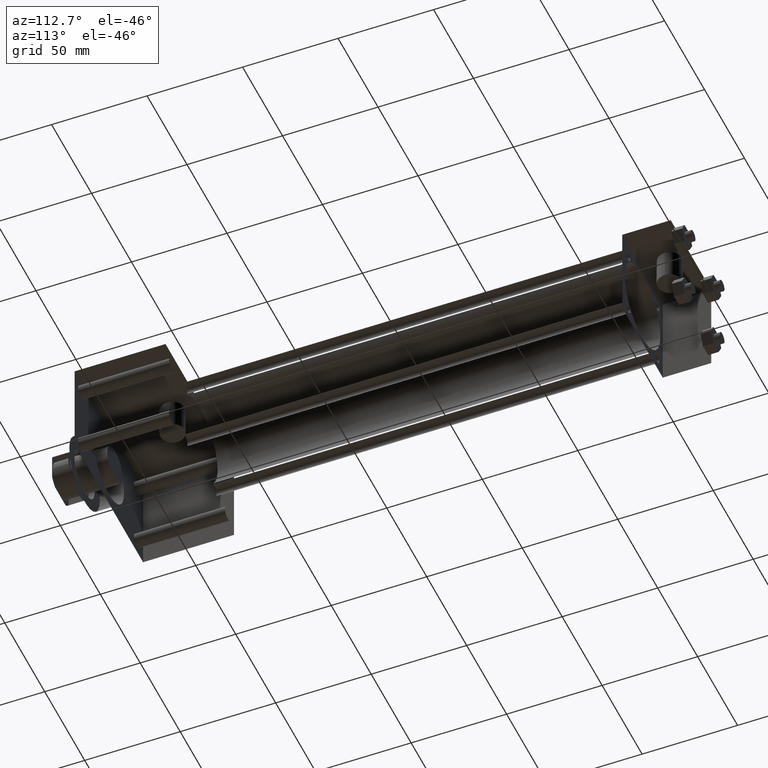
[diagram: clean part render]
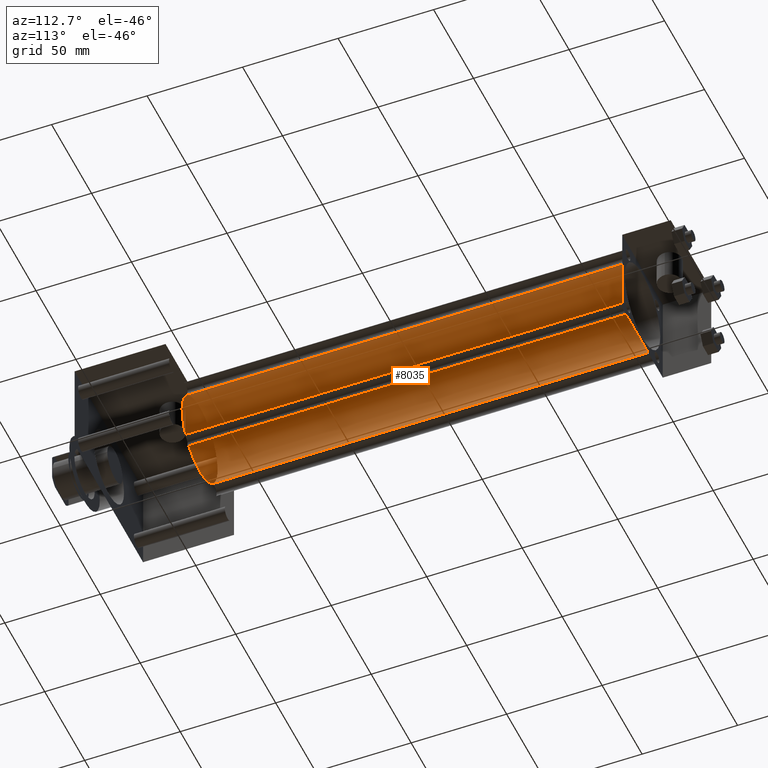
[diagram: same view with one face highlighted and labeled with its STEP entity id]
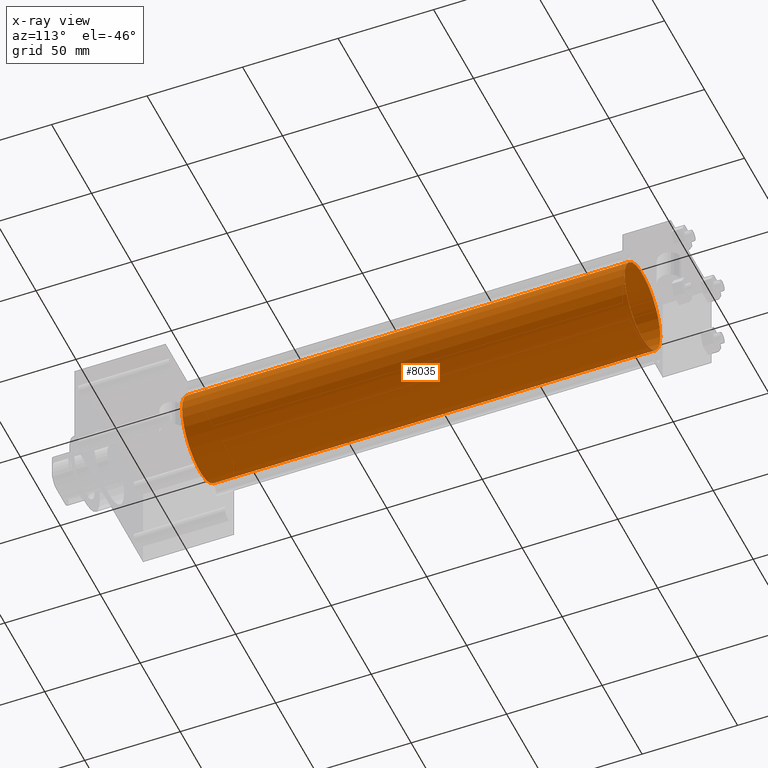
[diagram: x-ray of the same camera — body ghosted, the highlighted face saturated]
A machine part, auxiliary view. The second image highlights one B-rep face of the part: STEP entity #8035.
The next image is the same camera in x-ray: the body ghosted, the highlighted face saturated — about 0% of this face is hidden behind the body in this view.
In plain terms, the highlighted cylindrical surface (bore or boss wall) has radius 22.225 mm, axis along (0, -1, 0).
Its self-contained STEP definition (entity closure, byte-faithful):
#1016=EDGE_CURVE('',#1022,#1022,#1017,.T.);
#1017=CIRCLE('',#1018,2.222500000E+001);
#1018=AXIS2_PLACEMENT_3D('',#1019,#1020,#1021);
#1019=CARTESIAN_POINT('',(0.000000000E+000,7.302500000E+001,0.000000000E+000));
#1020=DIRECTION('',(0.0E+000,1.0E+000,0.0E+000));
#1021=DIRECTION('',(0.0E+000,0.0E+000,1.0E+000));
#1022=VERTEX_POINT('',#1023);
#1023=CARTESIAN_POINT('',(2.222500000E+001,7.302500000E+001,0.000000000E+000));
#1029=FACE_OUTER_BOUND('',#1031,.T.);
#1030=FACE_BOUND('',#1032,.T.);
#1031=EDGE_LOOP('',(#1033));
#1032=EDGE_LOOP('',(#1042));
#1033=ORIENTED_EDGE('',*,*,#1034,.F.);
#1034=EDGE_CURVE('',#1040,#1040,#1035,.T.);
#1035=CIRCLE('',#1036,2.222500000E+001);
#1036=AXIS2_PLACEMENT_3D('',#1037,#1038,#1039);
#1037=CARTESIAN_POINT('',(0.000000000E+000,3.048000000E+002,0.000000000E+000));
#1038=DIRECTION('',(0.0E+000,1.0E+000,0.0E+000));
#1039=DIRECTION('',(1.0E+000,0.0E+000,0.0E+000));
#1040=VERTEX_POINT('',#1041);
#1041=CARTESIAN_POINT('',(2.222500000E+001,3.048000000E+002,0.000000000E+000));
#1042=ORIENTED_EDGE('',*,*,#1016,.T.);
#1043=CYLINDRICAL_SURFACE('',#1044,2.222500000E+001);
#1044=AXIS2_PLACEMENT_3D('',#1045,#1046,#1047);
#1045=CARTESIAN_POINT('',(0.000000000E+000,3.048000000E+002,0.000000000E+000));
#1046=DIRECTION('',(0.0E+000,-1.0E+000,0.0E+000));
#1047=DIRECTION('',(0.0E+000,0.0E+000,-1.0E+000));
#8035=ADVANCED_FACE('',(#1029,#1030),#1043,.T.);